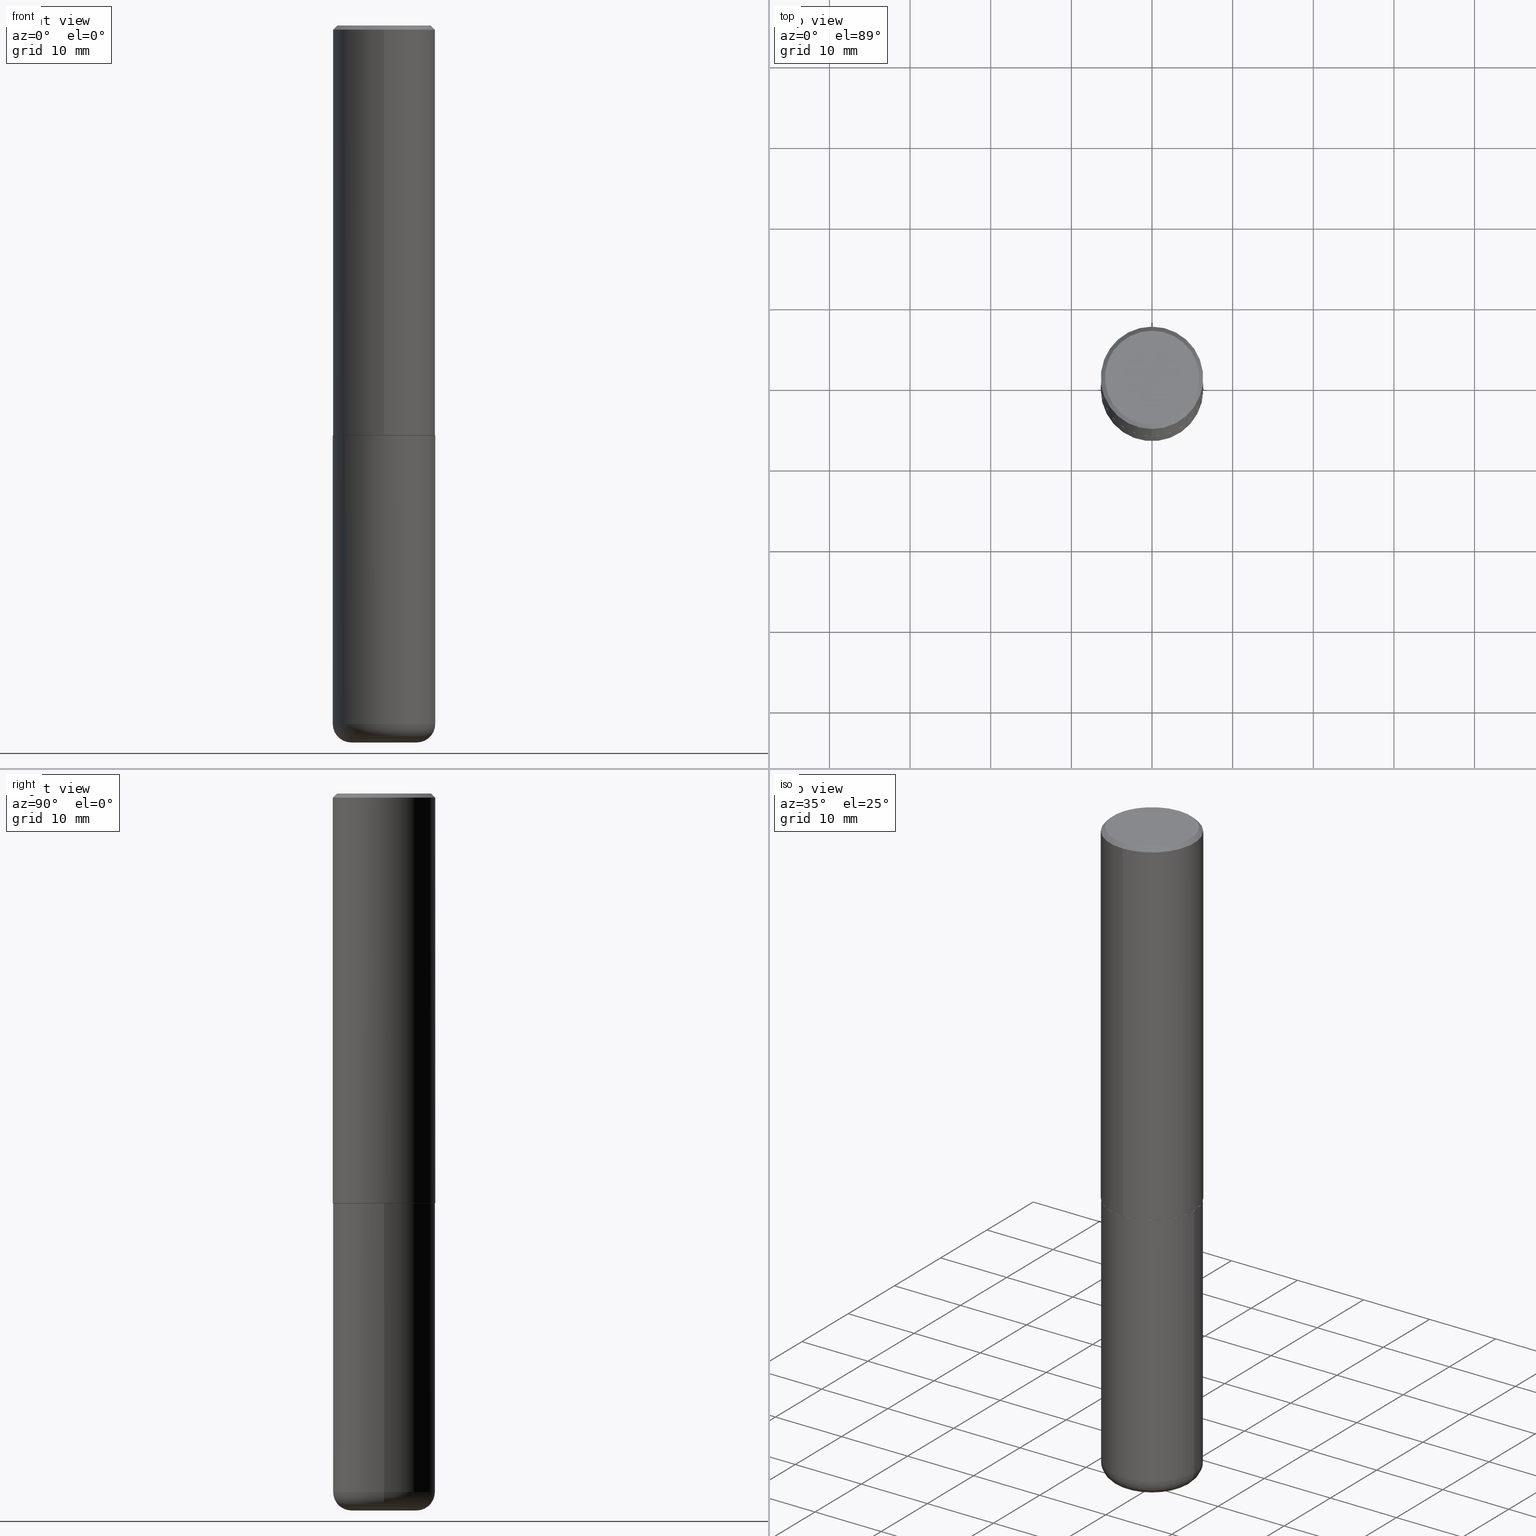
[diagram: canonical four-view strip — front | top / right | iso, engineering-drawing reading convention]
A machine part, canonical four-view strip (front | top / right | iso — engineering-drawing reading convention). The complete STEP part file that produces these views, byte-faithful:
ISO-10303-21;
HEADER;
FILE_DESCRIPTION (( 'STEP AP203' ),
    '1' );
FILE_NAME ('37553.STEP',
    '2024-03-02T04:12:42',
    ( '' ),
    ( '' ),
    'SwSTEP 2.0',
    'SolidWorks 2023',
    '' );
FILE_SCHEMA (( 'CONFIG_CONTROL_DESIGN' ));
ENDSEC;

DATA;
#1 = ORIENTED_EDGE ( 'NONE', *, *, #51, .F. ) ;
#2 = DIRECTION ( 'NONE',  ( 1.000000000000000000, 0.000000000000000000, 0.000000000000000000 ) ) ;
#3 = EDGE_CURVE ( 'NONE', #413, #86, #209, .T. ) ;
#4 = FACE_OUTER_BOUND ( 'NONE', #288, .T. ) ;
#5 = APPROVAL_STATUS ( 'not_yet_approved' ) ;
#6 = CONICAL_SURFACE ( 'NONE', #388, 0.2500000000000000000, 0.7853981633974481680 ) ;
#7 = CIRCLE ( 'NONE', #78, 0.2489999999999999991 ) ;
#8 = DIRECTION ( 'NONE',  ( -2.445468806185136597E-29, 3.491481338843145583E-15, 1.000000000000000000 ) ) ;
#9 = CALENDAR_DATE ( 2024, 1, 3 ) ;
#10 = CARTESIAN_POINT ( 'NONE',  ( -1.646519519465166968E-15, -0.2299999999999999822, 7.772528406023046093E-16 ) ) ;
#11 = COORDINATED_UNIVERSAL_TIME_OFFSET ( 5, 0, .BEHIND. ) ;
#12 = CC_DESIGN_APPROVAL ( #27, ( #177 ) ) ;
#13 = ORIENTED_EDGE ( 'NONE', *, *, #31, .T. ) ;
#14 = ORIENTED_EDGE ( 'NONE', *, *, #88, .T. ) ;
#15 = ADVANCED_FACE ( 'NONE', ( #157 ), #65, .T. ) ;
#16 = ORIENTED_EDGE ( 'NONE', *, *, #253, .T. ) ;
#17 = CIRCLE ( 'NONE', #396, 0.2489999999999999991 ) ;
#18 = CC_DESIGN_APPROVAL ( #222, ( #380 ) ) ;
#19 = AXIS2_PLACEMENT_3D ( 'NONE', #113, #85, #214 ) ;
#20 = ORIENTED_EDGE ( 'NONE', *, *, #250, .T. ) ;
#21 = ORIENTED_EDGE ( 'NONE', *, *, #153, .T. ) ;
#22 = CYLINDRICAL_SURFACE ( 'NONE', #278, 0.2500000000000001110 ) ;
#23 = EDGE_CURVE ( 'NONE', #63, #66, #35, .T. ) ;
#24 = CARTESIAN_POINT ( 'NONE',  ( 0.000000000000000000, 0.000000000000000000, 0.000000000000000000 ) ) ;
#25 = AXIS2_PLACEMENT_3D ( 'NONE', #37, #293, #2 ) ;
#26 = DIRECTION ( 'NONE',  ( 1.000000000000000000, -6.982962677686265133E-15, 4.883557194083112340E-29 ) ) ;
#27 = APPROVAL ( #329, 'UNSPECIFIED' ) ;
#28 = AXIS2_PLACEMENT_3D ( 'NONE', #267, #331, #271 ) ;
#29 = AXIS2_PLACEMENT_3D ( 'NONE', #284, #357, #414 ) ;
#30 = DIRECTION ( 'NONE',  ( -2.445737183286911680E-29, 3.491097007558327602E-15, 1.000000000000000000 ) ) ;
#31 = EDGE_CURVE ( 'NONE', #63, #56, #339, .T. ) ;
#32 = APPLICATION_CONTEXT ( 'configuration controlled 3d designs of mechanical parts and assemblies' ) ;
#33 = PLANE ( 'NONE',  #266 ) ;
#34 = FACE_OUTER_BOUND ( 'NONE', #103, .T. ) ;
#35 = CIRCLE ( 'NONE', #190, 0.08999999999999964972 ) ;
#36 = CIRCLE ( 'NONE', #304, 0.2500000000000000000 ) ;
#37 = CARTESIAN_POINT ( 'NONE',  ( 0.000000000000000000, 0.000000000000000000, 0.000000000000000000 ) ) ;
#38 = DIRECTION ( 'NONE',  ( -1.000000000000000000, 6.982962677686265922E-15, -4.876176775795935793E-29 ) ) ;
#39 = CALENDAR_DATE ( 2024, 1, 3 ) ;
#40 = CARTESIAN_POINT ( 'NONE',  ( 4.891474366573836672E-31, -6.982194015116674235E-17, -0.02000000000000005593 ) ) ;
#41 = FACE_OUTER_BOUND ( 'NONE', #80, .T. ) ;
#42 = COORDINATED_UNIVERSAL_TIME_OFFSET ( 5, 0, .BEHIND. ) ;
#43 = DIRECTION ( 'NONE',  ( -2.445737183286911680E-29, 3.491097007558327602E-15, 1.000000000000000000 ) ) ;
#44 = PERSON_AND_ORGANIZATION_ROLE ( 'design_owner' ) ;
#45 = ADVANCED_FACE ( 'NONE', ( #168 ), #6, .T. ) ;
#46 = EDGE_LOOP ( 'NONE', ( #245, #14, #385, #344 ) ) ;
#47 = ORIENTED_EDGE ( 'NONE', *, *, #250, .F. ) ;
#48 = APPROVAL_PERSON_ORGANIZATION ( #295, #142, #135 ) ;
#49 = CLOSED_SHELL ( 'NONE', ( #101, #307, #81, #45, #241, #204, #171, #351 ) ) ;
#50 = CIRCLE ( 'NONE', #185, 0.2500000000000002776 ) ;
#51 = EDGE_CURVE ( 'NONE', #82, #176, #184, .T. ) ;
#52 = VERTEX_POINT ( 'NONE', #122 ) ;
#53 = VERTEX_POINT ( 'NONE', #409 ) ;
#54 = CARTESIAN_POINT ( 'NONE',  ( -0.1600000000000000033, -1.076908298823896635E-14, -3.410000000000000142 ) ) ;
#55 = LINE ( 'NONE', #175, #297 ) ;
#56 = VERTEX_POINT ( 'NONE', #323 ) ;
#57 = AXIS2_PLACEMENT_3D ( 'NONE', #143, #161, #197 ) ;
#58 = ADVANCED_FACE ( 'NONE', ( #220 ), #61, .T. ) ;
#59 =( CONVERSION_BASED_UNIT ( 'INCH', #258 ) LENGTH_UNIT ( ) NAMED_UNIT ( #141 ) );
#60 = CARTESIAN_POINT ( 'NONE',  ( -1.715124499442882299E-15, -0.2500000000000000555, -0.01999999999999918510 ) ) ;
#61 = TOROIDAL_SURFACE ( 'NONE', #151, 0.1600000000000000033, 0.08999999999999967748 ) ;
#62 = ORIENTED_EDGE ( 'NONE', *, *, #155, .F. ) ;
#63 = VERTEX_POINT ( 'NONE', #228 ) ;
#64 = MANIFOLD_SOLID_BREP ( 'Body-Move/Copy2[1]', #178 ) ;
#65 = PLANE ( 'NONE',  #114 ) ;
#66 = VERTEX_POINT ( 'NONE', #283 ) ;
#67 = PLANE ( 'NONE',  #418 ) ;
#68 = DIRECTION ( 'NONE',  ( 6.982962677686265922E-15, 1.000000000000000000, -3.491097007558327602E-15 ) ) ;
#69 = CONICAL_SURFACE ( 'NONE', #386, 0.2489999999999999991, 0.7853981633975507526 ) ;
#70 = EDGE_LOOP ( 'NONE', ( #127, #20, #90, #308 ) ) ;
#71 = DIRECTION ( 'NONE',  ( -2.445737183286911680E-29, 3.491097007558327602E-15, 1.000000000000000000 ) ) ;
#72 = APPROVAL_ROLE ( '' ) ;
#73 = DIRECTION ( 'NONE',  ( -6.982962677686265922E-15, -1.000000000000000000, 3.278217592397112312E-15 ) ) ;
#74 = PERSON_AND_ORGANIZATION_ROLE ( 'classification_officer' ) ;
#75 = CARTESIAN_POINT ( 'NONE',  ( -0.2500000000000000000, -7.668100182170457762E-15, -1.999999999999999778 ) ) ;
#76 = PERSON_AND_ORGANIZATION ( #384, #134 ) ;
#77 = VECTOR ( 'NONE', #169, 39.37007874015748143 ) ;
#78 = AXIS2_PLACEMENT_3D ( 'NONE', #397, #272, #328 ) ;
#79 = PERSON_AND_ORGANIZATION ( #384, #134 ) ;
#80 = EDGE_LOOP ( 'NONE', ( #327, #193 ) ) ;
#81 = ADVANCED_FACE ( 'NONE', ( #182 ), #369, .T. ) ;
#82 = VERTEX_POINT ( 'NONE', #417 ) ;
#83 = CIRCLE ( 'NONE', #255, 0.2500000000000000555 ) ;
#84 = VERTEX_POINT ( 'NONE', #353 ) ;
#85 = DIRECTION ( 'NONE',  ( -2.445468806185136597E-29, 3.491481338843145583E-15, 1.000000000000000000 ) ) ;
#86 = VERTEX_POINT ( 'NONE', #60 ) ;
#87 = CARTESIAN_POINT ( 'NONE',  ( 0.000000000000000000, 0.000000000000000000, 0.000000000000000000 ) ) ;
#88 = EDGE_CURVE ( 'NONE', #84, #94, #50, .T. ) ;
#89 = FACE_OUTER_BOUND ( 'NONE', #46, .T. ) ;
#90 = ORIENTED_EDGE ( 'NONE', *, *, #138, .F. ) ;
#91 = CIRCLE ( 'NONE', #340, 0.08999999999999964972 ) ;
#92 = CARTESIAN_POINT ( 'NONE',  ( 8.339048629091315302E-29, -1.190595136545512608E-14, -3.410000000000000142 ) ) ;
#93 = EDGE_CURVE ( 'NONE', #84, #413, #390, .T. ) ;
#94 = VERTEX_POINT ( 'NONE', #260 ) ;
#95 = CARTESIAN_POINT ( 'NONE',  ( 1.745740669421566875E-15, 0.2499999999999999167, -0.02000000000000092676 ) ) ;
#96 = ORIENTED_EDGE ( 'NONE', *, *, #93, .T. ) ;
#97 = CARTESIAN_POINT ( 'NONE',  ( 1.776356839400251254E-15, 0.2500000000000001110, -8.727742518895823935E-16 ) ) ;
#98 = PRODUCT_DEFINITION_SHAPE ( 'NONE', 'NONE',  #177 ) ;
#99 = VERTEX_POINT ( 'NONE', #75 ) ;
#100 = FACE_OUTER_BOUND ( 'NONE', #70, .T. ) ;
#101 = ADVANCED_FACE ( 'NONE', ( #100 ), #69, .T. ) ;
#102 = CALENDAR_DATE ( 2024, 1, 3 ) ;
#103 = EDGE_LOOP ( 'NONE', ( #13, #206, #118, #281 ) ) ;
#104 = DIRECTION ( 'NONE',  ( -2.445737183286911680E-29, 3.491097007558327602E-15, 1.000000000000000000 ) ) ;
#105 = FACE_OUTER_BOUND ( 'NONE', #378, .T. ) ;
#106 = DIRECTION ( 'NONE',  ( 2.445737183286911680E-29, -3.491097007558327602E-15, -1.000000000000000000 ) ) ;
#107 = CARTESIAN_POINT ( 'NONE',  ( 4.891474366573822799E-29, -6.982194015116654415E-15, -1.999999999999999778 ) ) ;
#108 = PERSON_AND_ORGANIZATION ( #384, #134 ) ;
#109 = CARTESIAN_POINT ( 'NONE',  ( 8.339048629091315302E-29, -1.190595136545512608E-14, -3.410000000000000142 ) ) ;
#110 = CONICAL_SURFACE ( 'NONE', #115, 0.2489999999999999991, 0.7853981633975507526 ) ;
#111 = EDGE_LOOP ( 'NONE', ( #150, #96, #379, #410 ) ) ;
#112 = EDGE_LOOP ( 'NONE', ( #173, #393, #342, #291 ) ) ;
#113 = CARTESIAN_POINT ( 'NONE',  ( 8.559140821647976968E-29, -1.222018468595100619E-14, -3.499999999999999112 ) ) ;
#114 = AXIS2_PLACEMENT_3D ( 'NONE', #325, #371, #205 ) ;
#115 = AXIS2_PLACEMENT_3D ( 'NONE', #237, #365, #200 ) ;
#116 = DIRECTION ( 'NONE',  ( 7.105427357601001859E-15, 1.000000000000000000, -3.491481338843145583E-15 ) ) ;
#117 = CARTESIAN_POINT ( 'NONE',  ( 8.339048629091315302E-29, -1.190595136545512608E-14, -3.410000000000000142 ) ) ;
#118 = ORIENTED_EDGE ( 'NONE', *, *, #253, .F. ) ;
#119 = DIRECTION ( 'NONE',  ( -6.982962677686266711E-15, -1.000000000000000000, 3.491097007558327996E-15 ) ) ;
#120 = DIRECTION ( 'NONE',  ( -6.982962677686266711E-15, -1.000000000000000000, 3.491097007558327996E-15 ) ) ;
#121 = CIRCLE ( 'NONE', #167, 0.2500000000000000000 ) ;
#122 = CARTESIAN_POINT ( 'NONE',  ( 0.2500000000000000000, -8.728703347107857054E-15, -1.999999999999999778 ) ) ;
#123 = CYLINDRICAL_SURFACE ( 'NONE', #256, 0.2500000000000000000 ) ;
#124 = DIRECTION ( 'NONE',  ( -6.982962677686265922E-15, -1.000000000000000000, 3.483106191921935554E-15 ) ) ;
#125 = DIRECTION ( 'NONE',  ( 1.000000000000000000, -6.982962677686266711E-15, 4.876176775795935793E-29 ) ) ;
#126 = DIRECTION ( 'NONE',  ( 2.445737183286911400E-29, -3.491097007558327602E-15, -1.000000000000000000 ) ) ;
#127 = ORIENTED_EDGE ( 'NONE', *, *, #146, .T. ) ;
#128 = ADVANCED_FACE ( 'NONE', ( #4 ), #67, .F. ) ;
#129 = CARTESIAN_POINT ( 'NONE',  ( 1.606081415867841067E-15, 0.2299999999999999822, -8.158020473064706174E-16 ) ) ;
#130 = EDGE_LOOP ( 'NONE', ( #188, #279 ) ) ;
#131 = APPLICATION_PROTOCOL_DEFINITION ( 'international standard', 'config_control_design', 1994, #352 ) ;
#132 = FACE_OUTER_BOUND ( 'NONE', #111, .T. ) ;
#133 = DIRECTION ( 'NONE',  ( 4.937700262164546464E-15, 0.7071067811865447972, -0.7071067811865500152 ) ) ;
#134 = ORGANIZATION ( 'UNSPECIFIED', 'UNSPECIFIED', '' ) ;
#135 = APPROVAL_ROLE ( '' ) ;
#136 = AXIS2_PLACEMENT_3D ( 'NONE', #261, #8, #139 ) ;
#137 = LINE ( 'NONE', #270, #217 ) ;
#138 = EDGE_CURVE ( 'NONE', #94, #84, #330, .T. ) ;
#139 = DIRECTION ( 'NONE',  ( 1.000000000000000000, -6.982962677686265133E-15, 4.883557194083112340E-29 ) ) ;
#140 = COORDINATED_UNIVERSAL_TIME_OFFSET ( 5, 0, .BEHIND. ) ;
#141 = DIMENSIONAL_EXPONENTS ( 1.000000000000000000, 0.000000000000000000, 0.000000000000000000, 0.000000000000000000, 0.000000000000000000, 0.000000000000000000, 0.000000000000000000 ) ;
#142 = APPROVAL ( #5, 'UNSPECIFIED' ) ;
#143 = CARTESIAN_POINT ( 'NONE',  ( 4.891474366573822799E-29, -6.982194015116654415E-15, -1.999999999999999778 ) ) ;
#144 = PERSON_AND_ORGANIZATION ( #384, #134 ) ;
#145 = DIRECTION ( 'NONE',  ( -2.445468806185136597E-29, 3.491481338843145583E-15, 1.000000000000000000 ) ) ;
#146 = EDGE_CURVE ( 'NONE', #227, #230, #7, .T. ) ;
#147 = ORIENTED_EDGE ( 'NONE', *, *, #335, .T. ) ;
#148 = ORIENTED_EDGE ( 'NONE', *, *, #153, .F. ) ;
#149 = CARTESIAN_POINT ( 'NONE',  ( 1.772804125721499659E-15, 0.2489999999999930325, -2.000000000000000444 ) ) ;
#150 = ORIENTED_EDGE ( 'NONE', *, *, #138, .T. ) ;
#151 = AXIS2_PLACEMENT_3D ( 'NONE', #117, #316, #26 ) ;
#152 = LOCAL_TIME ( 23, 12, 42.00000000000000000, #140 ) ;
#153 = EDGE_CURVE ( 'NONE', #82, #413, #362, .T. ) ;
#154 = DIRECTION ( 'NONE',  ( 6.982962677686265922E-15, 1.000000000000000000, -3.483106191921935554E-15 ) ) ;
#155 = EDGE_CURVE ( 'NONE', #52, #99, #242, .T. ) ;
#156 = DIRECTION ( 'NONE',  ( 2.445737183286911680E-29, -3.491097007558327602E-15, -1.000000000000000000 ) ) ;
#157 = FACE_OUTER_BOUND ( 'NONE', #130, .T. ) ;
#158 = CARTESIAN_POINT ( 'NONE',  ( 4.891474366573836672E-31, -6.982194015116674235E-17, -0.02000000000000005593 ) ) ;
#159 = DIRECTION ( 'NONE',  ( -2.445468806185136597E-29, 3.491481338843145583E-15, 1.000000000000000000 ) ) ;
#160 = LOCAL_TIME ( 23, 12, 42.00000000000000000, #11 ) ;
#161 = DIRECTION ( 'NONE',  ( -2.445737183286911400E-29, 3.491097007558327602E-15, 1.000000000000000000 ) ) ;
#162 = APPROVAL_STATUS ( 'not_yet_approved' ) ;
#163 = CALENDAR_DATE ( 2024, 1, 3 ) ;
#164 = DIRECTION ( 'NONE',  ( 1.000000000000000000, -6.982962677686269077E-15, 0.000000000000000000 ) ) ;
#165 = CARTESIAN_POINT ( 'NONE',  ( 4.889028629390535480E-29, -6.978702918109095527E-15, -1.998999999999999666 ) ) ;
#166 =( GEOMETRIC_REPRESENTATION_CONTEXT ( 3 ) GLOBAL_UNCERTAINTY_ASSIGNED_CONTEXT ( ( #211 ) ) GLOBAL_UNIT_ASSIGNED_CONTEXT ( ( #59, #221, #398 ) ) REPRESENTATION_CONTEXT ( 'NONE', 'WORKASPACE' ) );
#167 = AXIS2_PLACEMENT_3D ( 'NONE', #243, #403, #367 ) ;
#168 = FACE_OUTER_BOUND ( 'NONE', #215, .T. ) ;
#169 = DIRECTION ( 'NONE',  ( -4.937700262165053702E-15, -0.7071067811866175168, 0.7071067811864775177 ) ) ;
#170 = APPROVAL_DATE_TIME ( #366, #222 ) ;
#171 = ADVANCED_FACE ( 'NONE', ( #41 ), #324, .F. ) ;
#172 = ORIENTED_EDGE ( 'NONE', *, *, #3, .T. ) ;
#173 = ORIENTED_EDGE ( 'NONE', *, *, #312, .F. ) ;
#174 = ADVANCED_FACE ( 'NONE', ( #34 ), #289, .T. ) ;
#175 = CARTESIAN_POINT ( 'NONE',  ( 1.769251412042698169E-15, 0.2489999999999930325, -2.000000000000000444 ) ) ;
#176 = VERTEX_POINT ( 'NONE', #10 ) ;
#177 = PRODUCT_DEFINITION ( 'UNKNOWN', '', #380, #377 ) ;
#178 = CLOSED_SHELL ( 'NONE', ( #375, #174, #128, #317, #58, #15 ) ) ;
#179 = EDGE_LOOP ( 'NONE', ( #180, #345 ) ) ;
#180 = ORIENTED_EDGE ( 'NONE', *, *, #51, .T. ) ;
#181 = EDGE_CURVE ( 'NONE', #66, #52, #296, .T. ) ;
#182 = FACE_OUTER_BOUND ( 'NONE', #213, .T. ) ;
#183 = LOCAL_TIME ( 23, 12, 42.00000000000000000, #198 ) ;
#184 = CIRCLE ( 'NONE', #233, 0.2299999999999999822 ) ;
#185 = AXIS2_PLACEMENT_3D ( 'NONE', #320, #30, #415 ) ;
#186 = DIRECTION ( 'NONE',  ( -2.445468806185136597E-29, 3.491481338843145583E-15, 1.000000000000000000 ) ) ;
#187 = CC_DESIGN_PERSON_AND_ORGANIZATION_ASSIGNMENT ( #302, #269, ( #380 ) ) ;
#188 = ORIENTED_EDGE ( 'NONE', *, *, #31, .F. ) ;
#189 = DIRECTION ( 'NONE',  ( -2.445737183286911680E-29, 3.491097007558327602E-15, 1.000000000000000000 ) ) ;
#190 = AXIS2_PLACEMENT_3D ( 'NONE', #199, #294, #264 ) ;
#191 = PERSON_AND_ORGANIZATION_ROLE ( 'creator' ) ;
#192 = APPROVAL_DATE_TIME ( #254, #142 ) ;
#193 = ORIENTED_EDGE ( 'NONE', *, *, #335, .F. ) ;
#194 = CARTESIAN_POINT ( 'NONE',  ( 4.890937612370272633E-29, -6.982962677686290376E-15, -1.999999999999999778 ) ) ;
#195 = DATE_TIME_ROLE ( 'classification_date' ) ;
#196 = DIRECTION ( 'NONE',  ( -2.445468806185136597E-29, 3.491481338843145583E-15, 1.000000000000000000 ) ) ;
#197 = DIRECTION ( 'NONE',  ( -6.982962677686265922E-15, -1.000000000000000000, 3.491097007558327602E-15 ) ) ;
#198 = COORDINATED_UNIVERSAL_TIME_OFFSET ( 5, 0, .BEHIND. ) ;
#199 = CARTESIAN_POINT ( 'NONE',  ( 0.1600000000000000033, -1.302322539388492780E-14, -3.410000000000000142 ) ) ;
#200 = DIRECTION ( 'NONE',  ( -6.982962677686265133E-15, -1.000000000000000000, 3.291383124896702687E-15 ) ) ;
#201 = AXIS2_PLACEMENT_3D ( 'NONE', #87, #411, #381 ) ;
#202 = AXIS2_PLACEMENT_3D ( 'NONE', #235, #186, #363 ) ;
#203 = DATE_AND_TIME ( #9, #160 ) ;
#204 = ADVANCED_FACE ( 'NONE', ( #105 ), #110, .T. ) ;
#205 = DIRECTION ( 'NONE',  ( -1.000000000000000000, 6.982962677686265922E-15, -4.876176775795935793E-29 ) ) ;
#206 = ORIENTED_EDGE ( 'NONE', *, *, #312, .T. ) ;
#207 = CARTESIAN_POINT ( 'NONE',  ( 4.890937612370272633E-29, -6.982962677686290376E-15, -1.999999999999999778 ) ) ;
#208 = ORIENTED_EDGE ( 'NONE', *, *, #337, .F. ) ;
#209 = CIRCLE ( 'NONE', #232, 0.2500000000000000000 ) ;
#210 = AXIS2_PLACEMENT_3D ( 'NONE', #165, #43, #73 ) ;
#211 = UNCERTAINTY_MEASURE_WITH_UNIT (LENGTH_MEASURE( 1.000000000000000082E-05 ), #59, 'distance_accuracy_value', 'NONE');
#212 = EDGE_CURVE ( 'NONE', #227, #94, #290, .T. ) ;
#213 = EDGE_LOOP ( 'NONE', ( #208, #392, #216, #148 ) ) ;
#214 = DIRECTION ( 'NONE',  ( 1.000000000000000000, -6.982962677686259611E-15, 0.000000000000000000 ) ) ;
#215 = EDGE_LOOP ( 'NONE', ( #406, #1, #21, #172 ) ) ;
#216 = ORIENTED_EDGE ( 'NONE', *, *, #300, .T. ) ;
#217 = VECTOR ( 'NONE', #303, 39.37007874015748143 ) ;
#218 = DIRECTION ( 'NONE',  ( -2.445468806185136597E-29, 3.491481338843145583E-15, 1.000000000000000000 ) ) ;
#219 = EDGE_CURVE ( 'NONE', #176, #86, #394, .T. ) ;
#220 = FACE_OUTER_BOUND ( 'NONE', #112, .T. ) ;
#221 =( NAMED_UNIT ( * ) PLANE_ANGLE_UNIT ( ) SI_UNIT ( $, .RADIAN. ) );
#222 = APPROVAL ( #162, 'UNSPECIFIED' ) ;
#223 = DIRECTION ( 'NONE',  ( 6.982962677686265922E-15, 1.000000000000000000, -3.483106191921935554E-15 ) ) ;
#224 = APPROVAL_PERSON_ORGANIZATION ( #76, #222, #262 ) ;
#225 = CIRCLE ( 'NONE', #29, 0.2299999999999999822 ) ;
#226 = EDGE_CURVE ( 'NONE', #94, #86, #408, .T. ) ;
#227 = VERTEX_POINT ( 'NONE', #341 ) ;
#228 = CARTESIAN_POINT ( 'NONE',  ( 0.1600000000000000033, -1.333745871438080791E-14, -3.499999999999999112 ) ) ;
#229 = FACE_OUTER_BOUND ( 'NONE', #310, .T. ) ;
#230 = VERTEX_POINT ( 'NONE', #149 ) ;
#231 = EDGE_CURVE ( 'NONE', #56, #63, #333, .T. ) ;
#232 = AXIS2_PLACEMENT_3D ( 'NONE', #391, #322, #124 ) ;
#233 = AXIS2_PLACEMENT_3D ( 'NONE', #354, #280, #313 ) ;
#234 = DATE_AND_TIME ( #102, #282 ) ;
#235 = CARTESIAN_POINT ( 'NONE',  ( 4.890937612370272633E-29, -6.982962677686290376E-15, -1.999999999999999778 ) ) ;
#236 = DATE_AND_TIME ( #39, #183 ) ;
#237 = CARTESIAN_POINT ( 'NONE',  ( 4.891474366573822799E-29, -6.982194015116654415E-15, -1.999999999999999778 ) ) ;
#238 = DATE_TIME_ROLE ( 'creation_date' ) ;
#239 = CARTESIAN_POINT ( 'NONE',  ( 1.745740669421566875E-15, 0.2499999999999999167, -0.02000000000000092676 ) ) ;
#240 = PERSON_AND_ORGANIZATION ( #384, #134 ) ;
#241 = ADVANCED_FACE ( 'NONE', ( #89 ), #22, .T. ) ;
#242 = CIRCLE ( 'NONE', #202, 0.2500000000000000000 ) ;
#243 = CARTESIAN_POINT ( 'NONE',  ( 4.891474366573836672E-31, -6.982194015116674235E-17, -0.02000000000000005593 ) ) ;
#244 = CC_DESIGN_PERSON_AND_ORGANIZATION_ASSIGNMENT ( #108, #74, ( #275 ) ) ;
#245 = ORIENTED_EDGE ( 'NONE', *, *, #93, .F. ) ;
#246 = ORIENTED_EDGE ( 'NONE', *, *, #181, .F. ) ;
#247 = ORIENTED_EDGE ( 'NONE', *, *, #273, .T. ) ;
#248 = PRODUCT ( '37553', '37553', '', ( #334 ) ) ;
#249 = DIRECTION ( 'NONE',  ( -1.000000000000000000, 7.105427357600996337E-15, 0.000000000000000000 ) ) ;
#250 = EDGE_CURVE ( 'NONE', #230, #84, #55, .T. ) ;
#251 = AXIS2_PLACEMENT_3D ( 'NONE', #158, #156, #223 ) ;
#252 = CC_DESIGN_PERSON_AND_ORGANIZATION_ASSIGNMENT ( #144, #274, ( #380 ) ) ;
#253 = EDGE_CURVE ( 'NONE', #66, #53, #318, .T. ) ;
#254 = DATE_AND_TIME ( #319, #338 ) ;
#255 = AXIS2_PLACEMENT_3D ( 'NONE', #109, #196, #164 ) ;
#256 = AXIS2_PLACEMENT_3D ( 'NONE', #387, #159, #125 ) ;
#257 = EDGE_CURVE ( 'NONE', #53, #66, #83, .T. ) ;
#258 = LENGTH_MEASURE_WITH_UNIT ( LENGTH_MEASURE( 0.02539999999999999897 ), #315 );
#259 = ORIENTED_EDGE ( 'NONE', *, *, #212, .T. ) ;
#260 = CARTESIAN_POINT ( 'NONE',  ( -1.745740669421519543E-15, -0.2500000000000072164, -1.998999999999998778 ) ) ;
#261 = CARTESIAN_POINT ( 'NONE',  ( 8.339048629091315302E-29, -1.190595136545512608E-14, -3.410000000000000142 ) ) ;
#262 = APPROVAL_ROLE ( '' ) ;
#263 = CARTESIAN_POINT ( 'NONE',  ( 0.000000000000000000, 0.000000000000000000, 0.000000000000000000 ) ) ;
#264 = DIRECTION ( 'NONE',  ( 1.000000000000000000, -6.982962677686273810E-15, 0.000000000000000000 ) ) ;
#265 = CC_DESIGN_APPROVAL ( #142, ( #275 ) ) ;
#266 = AXIS2_PLACEMENT_3D ( 'NONE', #129, #126, #68 ) ;
#267 = CARTESIAN_POINT ( 'NONE',  ( 8.559140821647976968E-29, -1.222018468595100619E-14, -3.499999999999999112 ) ) ;
#268 = CARTESIAN_POINT ( 'NONE',  ( 0.2500000000000000000, -1.745740669421566678E-15, 1.219044193948983948E-29 ) ) ;
#269 = PERSON_AND_ORGANIZATION_ROLE ( 'creator' ) ;
#270 = CARTESIAN_POINT ( 'NONE',  ( -0.2500000000000000000, 1.776356839400250465E-15, -1.229733772563726445E-29 ) ) ;
#271 = DIRECTION ( 'NONE',  ( 1.000000000000000000, -6.982962677686259611E-15, 0.000000000000000000 ) ) ;
#272 = DIRECTION ( 'NONE',  ( -2.445737183286911680E-29, 3.491097007558327602E-15, 1.000000000000000000 ) ) ;
#273 = EDGE_CURVE ( 'NONE', #53, #99, #137, .T. ) ;
#274 = PERSON_AND_ORGANIZATION_ROLE ( 'design_supplier' ) ;
#275 = SECURITY_CLASSIFICATION ( '', '', #395 ) ;
#276 = CC_DESIGN_DATE_AND_TIME_ASSIGNMENT ( #234, #195, ( #275 ) ) ;
#277 = VECTOR ( 'NONE', #189, 39.37007874015748143 ) ;
#278 = AXIS2_PLACEMENT_3D ( 'NONE', #24, #343, #120 ) ;
#279 = ORIENTED_EDGE ( 'NONE', *, *, #231, .F. ) ;
#280 = DIRECTION ( 'NONE',  ( -2.445737183286911680E-29, 3.491097007558327602E-15, 1.000000000000000000 ) ) ;
#281 = ORIENTED_EDGE ( 'NONE', *, *, #23, .F. ) ;
#282 = LOCAL_TIME ( 23, 12, 42.00000000000000000, #370 ) ;
#283 = CARTESIAN_POINT ( 'NONE',  ( 0.2499999999999998612, -1.365169203487669276E-14, -3.410000000000000142 ) ) ;
#284 = CARTESIAN_POINT ( 'NONE',  ( 6.285415214839433991E-46, -8.971934677910720830E-32, -2.569947113611056727E-17 ) ) ;
#285 = DIRECTION ( 'NONE',  ( -2.445737183286911680E-29, 3.491097007558327602E-15, 1.000000000000000000 ) ) ;
#286 = PRODUCT_RELATED_PRODUCT_CATEGORY ( 'detail', '', ( #248 ) ) ;
#287 = SHAPE_DEFINITION_REPRESENTATION ( #98, #349 ) ;
#288 = EDGE_LOOP ( 'NONE', ( #336, #358 ) ) ;
#289 = TOROIDAL_SURFACE ( 'NONE', #136, 0.1600000000000000033, 0.08999999999999967748 ) ;
#290 = LINE ( 'NONE', #332, #77 ) ;
#291 = ORIENTED_EDGE ( 'NONE', *, *, #257, .F. ) ;
#292 = EDGE_CURVE ( 'NONE', #99, #52, #36, .T. ) ;
#293 = DIRECTION ( 'NONE',  ( 0.000000000000000000, 0.000000000000000000, 1.000000000000000000 ) ) ;
#294 = DIRECTION ( 'NONE',  ( -6.982962677686266711E-15, -1.000000000000000000, 3.491481338843145583E-15 ) ) ;
#295 = PERSON_AND_ORGANIZATION ( #384, #134 ) ;
#296 = LINE ( 'NONE', #268, #374 ) ;
#297 = VECTOR ( 'NONE', #309, 39.37007874015748143 ) ;
#298 = APPLICATION_PROTOCOL_DEFINITION ( 'international standard', 'config_control_design', 1994, #32 ) ;
#299 = CYLINDRICAL_SURFACE ( 'NONE', #360, 0.2500000000000001110 ) ;
#300 = EDGE_CURVE ( 'NONE', #86, #413, #121, .T. ) ;
#301 = CARTESIAN_POINT ( 'NONE',  ( -1.715124499442882299E-15, -0.2500000000000000555, -0.01999999999999918510 ) ) ;
#302 = PERSON_AND_ORGANIZATION ( #384, #134 ) ;
#303 = DIRECTION ( 'NONE',  ( -2.445468806185136877E-29, 3.491481338843145188E-15, 1.000000000000000000 ) ) ;
#304 = AXIS2_PLACEMENT_3D ( 'NONE', #207, #145, #306 ) ;
#305 = ORIENTED_EDGE ( 'NONE', *, *, #292, .F. ) ;
#306 = DIRECTION ( 'NONE',  ( 1.000000000000000000, -6.982962677686266711E-15, 0.000000000000000000 ) ) ;
#307 = ADVANCED_FACE ( 'NONE', ( #132 ), #299, .T. ) ;
#308 = ORIENTED_EDGE ( 'NONE', *, *, #212, .F. ) ;
#309 = DIRECTION ( 'NONE',  ( 5.024295867788576727E-15, 0.7071067811866224018, 0.7071067811864726327 ) ) ;
#310 = EDGE_LOOP ( 'NONE', ( #16, #247, #62, #246 ) ) ;
#311 = FACE_OUTER_BOUND ( 'NONE', #372, .T. ) ;
#312 = EDGE_CURVE ( 'NONE', #56, #53, #91, .T. ) ;
#313 = DIRECTION ( 'NONE',  ( -6.982962677686265922E-15, -1.000000000000000000, 3.491097007558327207E-15 ) ) ;
#314 = CC_DESIGN_PERSON_AND_ORGANIZATION_ASSIGNMENT ( #79, #44, ( #248 ) ) ;
#315 =( LENGTH_UNIT ( ) NAMED_UNIT ( * ) SI_UNIT ( $, .METRE. ) );
#316 = DIRECTION ( 'NONE',  ( -2.445468806185136597E-29, 3.491481338843145583E-15, 1.000000000000000000 ) ) ;
#317 = ADVANCED_FACE ( 'NONE', ( #311 ), #376, .T. ) ;
#318 = CIRCLE ( 'NONE', #355, 0.2500000000000000555 ) ;
#319 = CALENDAR_DATE ( 2024, 1, 3 ) ;
#320 = CARTESIAN_POINT ( 'NONE',  ( 4.889028629390535480E-29, -6.978702918109095527E-15, -1.998999999999999666 ) ) ;
#321 = CARTESIAN_POINT ( 'NONE',  ( 4.891474366573822799E-29, -6.982194015116654415E-15, -1.999999999999999778 ) ) ;
#322 = DIRECTION ( 'NONE',  ( -2.445737183286911680E-29, 3.491097007558327602E-15, 1.000000000000000000 ) ) ;
#323 = CARTESIAN_POINT ( 'NONE',  ( -0.1600000000000000033, -1.060645541739486182E-14, -3.499999999999999112 ) ) ;
#324 = PLANE ( 'NONE',  #57 ) ;
#325 = CARTESIAN_POINT ( 'NONE',  ( 1.690506257577845460E-28, -2.683497136698531760E-16, -3.499999999999999112 ) ) ;
#326 = DIRECTION ( 'NONE',  ( 2.438088387897960049E-29, -3.491481338843145188E-15, -1.000000000000000000 ) ) ;
#327 = ORIENTED_EDGE ( 'NONE', *, *, #146, .F. ) ;
#328 = DIRECTION ( 'NONE',  ( -6.982962677686265133E-15, -1.000000000000000000, 3.291383124896702687E-15 ) ) ;
#329 = APPROVAL_STATUS ( 'not_yet_approved' ) ;
#330 = CIRCLE ( 'NONE', #210, 0.2500000000000002776 ) ;
#331 = DIRECTION ( 'NONE',  ( -2.445468806185136597E-29, 3.491481338843145583E-15, 1.000000000000000000 ) ) ;
#332 = CARTESIAN_POINT ( 'NONE',  ( -1.738757706743831162E-15, -0.2490000000000069658, -1.999999999999998890 ) ) ;
#333 = CIRCLE ( 'NONE', #19, 0.1600000000000000033 ) ;
#334 = MECHANICAL_CONTEXT ( 'NONE', #352, 'mechanical' ) ;
#335 = EDGE_CURVE ( 'NONE', #230, #227, #17, .T. ) ;
#336 = ORIENTED_EDGE ( 'NONE', *, *, #155, .T. ) ;
#337 = EDGE_CURVE ( 'NONE', #176, #82, #225, .T. ) ;
#338 = LOCAL_TIME ( 23, 12, 42.00000000000000000, #42 ) ;
#339 = CIRCLE ( 'NONE', #28, 0.1600000000000000033 ) ;
#340 = AXIS2_PLACEMENT_3D ( 'NONE', #54, #116, #249 ) ;
#341 = CARTESIAN_POINT ( 'NONE',  ( -1.738757706743831162E-15, -0.2490000000000069658, -1.999999999999998890 ) ) ;
#342 = ORIENTED_EDGE ( 'NONE', *, *, #23, .T. ) ;
#343 = DIRECTION ( 'NONE',  ( -2.445737183286911680E-29, 3.491097007558327602E-15, 1.000000000000000000 ) ) ;
#344 = ORIENTED_EDGE ( 'NONE', *, *, #3, .F. ) ;
#345 = ORIENTED_EDGE ( 'NONE', *, *, #337, .T. ) ;
#346 = MANIFOLD_SOLID_BREP ( 'Body-Move/Copy2[2]', #49 ) ;
#347 = VECTOR ( 'NONE', #412, 39.37007874015748143 ) ;
#348 = CARTESIAN_POINT ( 'NONE',  ( -1.745740669421567467E-15, -0.2500000000000001110, 8.727742518895823935E-16 ) ) ;
#349 = ADVANCED_BREP_SHAPE_REPRESENTATION ( '37553', ( #64, #346, #25 ), #166 ) ;
#350 = DIRECTION ( 'NONE',  ( 1.000000000000000000, -6.982962677686269077E-15, 0.000000000000000000 ) ) ;
#351 = ADVANCED_FACE ( 'NONE', ( #416 ), #33, .F. ) ;
#352 = APPLICATION_CONTEXT ( 'configuration controlled 3d designs of mechanical parts and assemblies' ) ;
#353 = CARTESIAN_POINT ( 'NONE',  ( 1.776356839400276103E-15, 0.2499999999999933109, -1.999000000000000554 ) ) ;
#354 = CARTESIAN_POINT ( 'NONE',  ( 6.285415214839433991E-46, -8.971934677910720830E-32, -2.569947113611056727E-17 ) ) ;
#355 = AXIS2_PLACEMENT_3D ( 'NONE', #92, #218, #350 ) ;
#356 = ORIENTED_EDGE ( 'NONE', *, *, #88, .F. ) ;
#357 = DIRECTION ( 'NONE',  ( -2.445737183286911680E-29, 3.491097007558327602E-15, 1.000000000000000000 ) ) ;
#358 = ORIENTED_EDGE ( 'NONE', *, *, #292, .T. ) ;
#359 = DIRECTION ( 'NONE',  ( -6.982962677686265133E-15, -1.000000000000000000, 3.291383124896702687E-15 ) ) ;
#360 = AXIS2_PLACEMENT_3D ( 'NONE', #263, #104, #119 ) ;
#361 = ORIENTED_EDGE ( 'NONE', *, *, #181, .T. ) ;
#362 = LINE ( 'NONE', #239, #389 ) ;
#363 = DIRECTION ( 'NONE',  ( 1.000000000000000000, -6.982962677686266711E-15, 0.000000000000000000 ) ) ;
#364 = PERSON_AND_ORGANIZATION ( #384, #134 ) ;
#365 = DIRECTION ( 'NONE',  ( -2.445737183286911680E-29, 3.491097007558327602E-15, 1.000000000000000000 ) ) ;
#366 = DATE_AND_TIME ( #163, #152 ) ;
#367 = DIRECTION ( 'NONE',  ( -6.982962677686265922E-15, -1.000000000000000000, 3.483106191921935554E-15 ) ) ;
#368 = APPROVAL_PERSON_ORGANIZATION ( #364, #27, #72 ) ;
#369 = CONICAL_SURFACE ( 'NONE', #251, 0.2500000000000000000, 0.7853981633974481680 ) ;
#370 = COORDINATED_UNIVERSAL_TIME_OFFSET ( 5, 0, .BEHIND. ) ;
#371 = DIRECTION ( 'NONE',  ( 2.438088387897960049E-29, -3.491481338843145188E-15, -1.000000000000000000 ) ) ;
#372 = EDGE_LOOP ( 'NONE', ( #407, #404, #361, #305 ) ) ;
#373 = CC_DESIGN_DATE_AND_TIME_ASSIGNMENT ( #203, #238, ( #177 ) ) ;
#374 = VECTOR ( 'NONE', #399, 39.37007874015748143 ) ;
#375 = ADVANCED_FACE ( 'NONE', ( #229 ), #123, .T. ) ;
#376 = CYLINDRICAL_SURFACE ( 'NONE', #201, 0.2500000000000000000 ) ;
#377 = DESIGN_CONTEXT ( 'detailed design', #32, 'design' ) ;
#378 = EDGE_LOOP ( 'NONE', ( #47, #147, #259, #356 ) ) ;
#379 = ORIENTED_EDGE ( 'NONE', *, *, #300, .F. ) ;
#380 = PRODUCT_DEFINITION_FORMATION_WITH_SPECIFIED_SOURCE ( 'ANY', '', #248, .NOT_KNOWN. ) ;
#381 = DIRECTION ( 'NONE',  ( 1.000000000000000000, -6.982962677686266711E-15, 4.876176775795935793E-29 ) ) ;
#382 = DIRECTION ( 'NONE',  ( -4.851104656540962697E-15, -0.7071067811865497932, -0.7071067811865451302 ) ) ;
#383 = DIRECTION ( 'NONE',  ( -6.982962677686265133E-15, -1.000000000000000000, 3.291383124896702687E-15 ) ) ;
#384 = PERSON ( 'UNSPECIFIED', 'UNSPECIFIED', 'UNSPECIFIED', ('UNSPECIFIED'), ('UNSPECIFIED'), ('UNSPECIFIED') ) ;
#385 = ORIENTED_EDGE ( 'NONE', *, *, #226, .T. ) ;
#386 = AXIS2_PLACEMENT_3D ( 'NONE', #107, #71, #359 ) ;
#387 = CARTESIAN_POINT ( 'NONE',  ( 0.000000000000000000, 0.000000000000000000, 0.000000000000000000 ) ) ;
#388 = AXIS2_PLACEMENT_3D ( 'NONE', #40, #106, #154 ) ;
#389 = VECTOR ( 'NONE', #133, 39.37007874015748854 ) ;
#390 = LINE ( 'NONE', #97, #277 ) ;
#391 = CARTESIAN_POINT ( 'NONE',  ( 4.891474366573836672E-31, -6.982194015116674235E-17, -0.02000000000000005593 ) ) ;
#392 = ORIENTED_EDGE ( 'NONE', *, *, #219, .T. ) ;
#393 = ORIENTED_EDGE ( 'NONE', *, *, #231, .T. ) ;
#394 = LINE ( 'NONE', #301, #402 ) ;
#395 = SECURITY_CLASSIFICATION_LEVEL ( 'unclassified' ) ;
#396 = AXIS2_PLACEMENT_3D ( 'NONE', #321, #285, #383 ) ;
#397 = CARTESIAN_POINT ( 'NONE',  ( 4.891474366573822799E-29, -6.982194015116654415E-15, -1.999999999999999778 ) ) ;
#398 =( NAMED_UNIT ( * ) SI_UNIT ( $, .STERADIAN. ) SOLID_ANGLE_UNIT ( ) );
#399 = DIRECTION ( 'NONE',  ( -2.445468806185136877E-29, 3.491481338843145188E-15, 1.000000000000000000 ) ) ;
#400 = APPROVAL_DATE_TIME ( #236, #27 ) ;
#401 = CC_DESIGN_SECURITY_CLASSIFICATION ( #275, ( #380 ) ) ;
#402 = VECTOR ( 'NONE', #382, 39.37007874015748854 ) ;
#403 = DIRECTION ( 'NONE',  ( -2.445737183286911680E-29, 3.491097007558327602E-15, 1.000000000000000000 ) ) ;
#404 = ORIENTED_EDGE ( 'NONE', *, *, #257, .T. ) ;
#405 = CC_DESIGN_PERSON_AND_ORGANIZATION_ASSIGNMENT ( #240, #191, ( #177 ) ) ;
#406 = ORIENTED_EDGE ( 'NONE', *, *, #219, .F. ) ;
#407 = ORIENTED_EDGE ( 'NONE', *, *, #273, .F. ) ;
#408 = LINE ( 'NONE', #348, #347 ) ;
#409 = CARTESIAN_POINT ( 'NONE',  ( -0.2499999999999998612, -1.012959452605487719E-14, -3.410000000000000142 ) ) ;
#410 = ORIENTED_EDGE ( 'NONE', *, *, #226, .F. ) ;
#411 = DIRECTION ( 'NONE',  ( -2.445468806185136597E-29, 3.491481338843145583E-15, 1.000000000000000000 ) ) ;
#412 = DIRECTION ( 'NONE',  ( -2.445737183286911680E-29, 3.491097007558327602E-15, 1.000000000000000000 ) ) ;
#413 = VERTEX_POINT ( 'NONE', #95 ) ;
#414 = DIRECTION ( 'NONE',  ( -6.982962677686265922E-15, -1.000000000000000000, 3.491097007558327207E-15 ) ) ;
#415 = DIRECTION ( 'NONE',  ( -6.982962677686265922E-15, -1.000000000000000000, 3.278217592397112312E-15 ) ) ;
#416 = FACE_OUTER_BOUND ( 'NONE', #179, .T. ) ;
#417 = CARTESIAN_POINT ( 'NONE',  ( 1.675911042644703774E-15, 0.2299999999999999822, -8.286517828745257562E-16 ) ) ;
#418 = AXIS2_PLACEMENT_3D ( 'NONE', #194, #326, #38 ) ;
ENDSEC;
END-ISO-10303-21;
